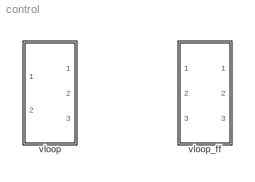
MODEL control
KIND library
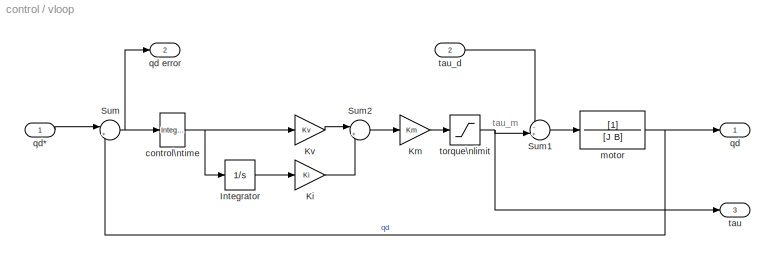
BLOCK [SubSystem] vloop
  FunctionWithSeparateData = off
  MaskCallbackString = ||||||
  MaskEnableString = on,on,on,on,on,on,on
  MaskHideContents = off
  MaskIconFrame = on
  MaskIconOpaque = on
  MaskIconRotate = none
  MaskIconUnits = autoscale
  MaskPortRotate = default
  MaskPromptString = Inertia (J)|Viscous friction coefficient (B)|Motor torque constant|Torque limit (tau_max)|Proportional gain (Kv)|Integral gain (Ki)|Sample interval (T)
  MaskStyleString = edit,edit,edit,edit,edit,edit,edit
  MaskToolTipString = on,on,on,on,on,on,on
  MaskTunableValueString = on,on,on,on,on,on,on
  MaskValueString = 372e-6|817e-6|0.228|0.9|1|0|0.001
  MaskVariables = J=@1;B=@2;Km=@3;tau_max=@4;Kv=@5;Ki=@6;T=@7;
  MaskVisibilityString = on,on,on,on,on,on,on
  MinAlgLoopOccurrences = off
  Opaque = off
  Ports = [2, 3]
  PropExecContextOutsideSubsystem = off
  RTWSystemCode = Auto
  RequestExecContextInheritance = off
  SID = 24
BLOCK [Integrator] vloop/Integrator
  Ports = [1, 1]
  SID = 28
BLOCK [Gain] vloop/Ki
  Gain = Ki
  OutDataTypeStr = Inherit: Inherit via internal rule
  ParamDataTypeStr = Inherit: Inherit via internal rule
  SID = 27
  SaturateOnIntegerOverflow = off
BLOCK [Gain] vloop/Km
  Gain = Km
  OutDataTypeStr = Inherit: Inherit via internal rule
  ParamDataTypeStr = Inherit: Inherit via internal rule
  SID = 29
  SaturateOnIntegerOverflow = off
BLOCK [Gain] vloop/Kv
  Gain = Kv
  OutDataTypeStr = Inherit: Inherit via internal rule
  ParamDataTypeStr = Inherit: Inherit via internal rule
  SID = 30
  SaturateOnIntegerOverflow = off
BLOCK [Sum] vloop/Sum
  IconShape = round
  InputSameDT = off
  Inputs = |+-
  OutDataTypeStr = Inherit: Inherit via internal rule
  Ports = [2, 1]
  SID = 31
  SaturateOnIntegerOverflow = off
BLOCK [Sum] vloop/Sum1
  IconShape = round
  InputSameDT = off
  Inputs = -+|
  OutDataTypeStr = Inherit: Inherit via internal rule
  Ports = [2, 1]
  SID = 32
  SaturateOnIntegerOverflow = off
BLOCK [Sum] vloop/Sum2
  IconShape = round
  InputSameDT = off
  Inputs = |++
  OutDataTypeStr = Inherit: Inherit via internal rule
  Ports = [2, 1]
  SID = 33
  SaturateOnIntegerOverflow = off
BLOCK [Reference] vloop/control\ntime  REF=simulink/Discrete/Integer Delay
  InputProcessing = Inherited
  NumDelays = 1
  Ports = [1, 1]
  SID = 34
  SourceBlock = simulink/Discrete/Integer Delay
  SourceType = Integer Delay
  UserData = DataTag0
  UserDataPersistent = on
  samptime = T
  vinit = 0.0
BLOCK [TransferFcn] vloop/motor
  ContinuousStateAttributes = 'qd'
  Denominator = [J B]
  SID = 35
BLOCK [Outport] vloop/qd
  IconDisplay = Port number
  SID = 37
BLOCK [Outport] vloop/qd error
  IconDisplay = Port number
  Port = 2
  SID = 38
BLOCK [Inport] vloop/qd*
  IconDisplay = Port number
  SID = 25
BLOCK [Outport] vloop/tau
  IconDisplay = Port number
  Port = 3
  SID = 39
BLOCK [Inport] vloop/tau_d
  IconDisplay = Port number
  Port = 2
  SID = 26
BLOCK [Saturate] vloop/torque\nlimit
  InputPortMap = u0
  LowerLimit = -tau_max
  Ports = [1, 1]
  SID = 36
  UpperLimit = tau_max
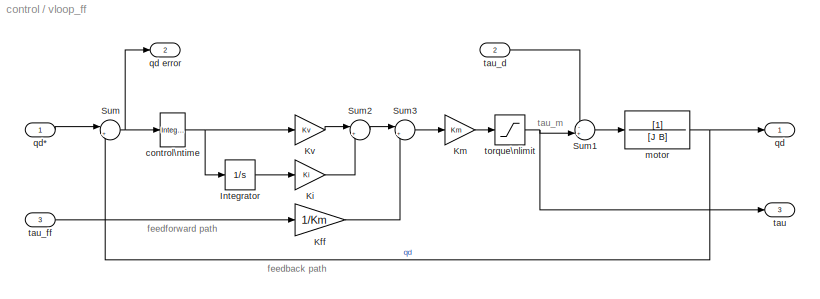
BLOCK [SubSystem] vloop_ff
  FunctionWithSeparateData = off
  MaskCallbackString = ||||||
  MaskEnableString = on,on,on,on,on,on,on
  MaskHideContents = off
  MaskIconFrame = on
  MaskIconOpaque = on
  MaskIconRotate = none
  MaskIconUnits = autoscale
  MaskPortRotate = default
  MaskPromptString = Inertia (J)|Viscous friction coefficient (B)|Motor torque constant|Torque limit (tau_max)|Proportional gain (Kv)|Integral gain (Ki)|Sample interval (T)
  MaskStyleString = edit,edit,edit,edit,edit,edit,edit
  MaskToolTipString = on,on,on,on,on,on,on
  MaskTunableValueString = on,on,on,on,on,on,on
  MaskValueString = 372e-6|817e-6|0.228|0.9|1|0|0.001
  MaskVariables = J=@1;B=@2;Km=@3;tau_max=@4;Kv=@5;Ki=@6;T=@7;
  MaskVisibilityString = on,on,on,on,on,on,on
  MinAlgLoopOccurrences = off
  Opaque = off
  Ports = [3, 3]
  PropExecContextOutsideSubsystem = off
  RTWSystemCode = Auto
  RequestExecContextInheritance = off
  SID = 41
BLOCK [Integrator] vloop_ff/Integrator
  Ports = [1, 1]
  SID = 45
BLOCK [Gain] vloop_ff/Kff
  Gain = 1/Km
  OutDataTypeStr = Inherit: Inherit via internal rule
  ParamDataTypeStr = Inherit: Inherit via internal rule
  SID = 58
  SaturateOnIntegerOverflow = off
BLOCK [Gain] vloop_ff/Ki
  Gain = Ki
  OutDataTypeStr = Inherit: Inherit via internal rule
  ParamDataTypeStr = Inherit: Inherit via internal rule
  SID = 44
  SaturateOnIntegerOverflow = off
BLOCK [Gain] vloop_ff/Km
  Gain = Km
  OutDataTypeStr = Inherit: Inherit via internal rule
  ParamDataTypeStr = Inherit: Inherit via internal rule
  SID = 46
  SaturateOnIntegerOverflow = off
BLOCK [Gain] vloop_ff/Kv
  Gain = Kv
  OutDataTypeStr = Inherit: Inherit via internal rule
  ParamDataTypeStr = Inherit: Inherit via internal rule
  SID = 47
  SaturateOnIntegerOverflow = off
BLOCK [Sum] vloop_ff/Sum
  IconShape = round
  InputSameDT = off
  Inputs = |+-
  OutDataTypeStr = Inherit: Inherit via internal rule
  Ports = [2, 1]
  SID = 48
  SaturateOnIntegerOverflow = off
BLOCK [Sum] vloop_ff/Sum1
  IconShape = round
  InputSameDT = off
  Inputs = -+|
  OutDataTypeStr = Inherit: Inherit via internal rule
  Ports = [2, 1]
  SID = 49
  SaturateOnIntegerOverflow = off
BLOCK [Sum] vloop_ff/Sum2
  IconShape = round
  InputSameDT = off
  Inputs = |++
  OutDataTypeStr = Inherit: Inherit via internal rule
  Ports = [2, 1]
  SID = 50
  SaturateOnIntegerOverflow = off
BLOCK [Sum] vloop_ff/Sum3
  IconShape = round
  InputSameDT = off
  Inputs = |++
  OutDataTypeStr = Inherit: Inherit via internal rule
  Ports = [2, 1]
  SID = 57
  SaturateOnIntegerOverflow = off
BLOCK [Reference] vloop_ff/control\ntime  REF=simulink/Discrete/Integer Delay
  InputProcessing = Inherited
  NumDelays = 1
  Ports = [1, 1]
  SID = 51
  SourceBlock = simulink/Discrete/Integer Delay
  SourceType = Integer Delay
  UserData = DataTag1
  UserDataPersistent = on
  samptime = T
  vinit = 0.0
BLOCK [TransferFcn] vloop_ff/motor
  ContinuousStateAttributes = 'qd'
  Denominator = [J B]
  SID = 52
BLOCK [Outport] vloop_ff/qd
  IconDisplay = Port number
  SID = 54
BLOCK [Outport] vloop_ff/qd error
  IconDisplay = Port number
  Port = 2
  SID = 55
BLOCK [Inport] vloop_ff/qd*
  IconDisplay = Port number
  SID = 42
BLOCK [Outport] vloop_ff/tau
  IconDisplay = Port number
  Port = 3
  SID = 56
BLOCK [Inport] vloop_ff/tau_d
  IconDisplay = Port number
  Port = 2
  SID = 43
BLOCK [Inport] vloop_ff/tau_ff
  IconDisplay = Port number
  Port = 3
  SID = 59
BLOCK [Saturate] vloop_ff/torque\nlimit
  InputPortMap = u0
  LowerLimit = -tau_max
  Ports = [1, 1]
  SID = 53
  UpperLimit = tau_max
ANNOTATION vloop: tau_m
ANNOTATION vloop_ff: feedback path
ANNOTATION vloop_ff: feedforward path
ANNOTATION vloop_ff: tau_m
LINE vloop/Integrator:1 -> vloop/Ki:1
LINE vloop/Ki:1 -> vloop/Sum2:2
LINE vloop/Km:1 -> vloop/torque\nlimit:1
LINE vloop/Kv:1 -> vloop/Sum2:1
LINE vloop/Sum1:1 -> vloop/motor:1
LINE vloop/Sum2:1 -> vloop/Km:1
NET vloop/Sum:1 -> vloop/control\ntime:1, vloop/qd error:1
NET vloop/control\ntime:1 -> vloop/Integrator:1, vloop/Kv:1
NET vloop/motor:1 -> vloop/Sum:2, vloop/qd:1
LINE vloop/qd*:1 -> vloop/Sum:1
LINE vloop/tau_d:1 -> vloop/Sum1:1
NET vloop/torque\nlimit:1 -> vloop/Sum1:2, vloop/tau:1
LINE vloop_ff/Integrator:1 -> vloop_ff/Ki:1
LINE vloop_ff/Kff:1 -> vloop_ff/Sum3:2
LINE vloop_ff/Ki:1 -> vloop_ff/Sum2:2
LINE vloop_ff/Km:1 -> vloop_ff/torque\nlimit:1
LINE vloop_ff/Kv:1 -> vloop_ff/Sum2:1
LINE vloop_ff/Sum1:1 -> vloop_ff/motor:1
LINE vloop_ff/Sum2:1 -> vloop_ff/Sum3:1
LINE vloop_ff/Sum3:1 -> vloop_ff/Km:1
NET vloop_ff/Sum:1 -> vloop_ff/control\ntime:1, vloop_ff/qd error:1
NET vloop_ff/control\ntime:1 -> vloop_ff/Integrator:1, vloop_ff/Kv:1
NET vloop_ff/motor:1 -> vloop_ff/Sum:2, vloop_ff/qd:1
LINE vloop_ff/qd*:1 -> vloop_ff/Sum:1
LINE vloop_ff/tau_d:1 -> vloop_ff/Sum1:1
LINE vloop_ff/tau_ff:1 -> vloop_ff/Kff:1
NET vloop_ff/torque\nlimit:1 -> vloop_ff/Sum1:2, vloop_ff/tau:1
note: NET lines group one-source signal fan-out (src -> all destinations, sorted); 1:1 wires keep LINE
